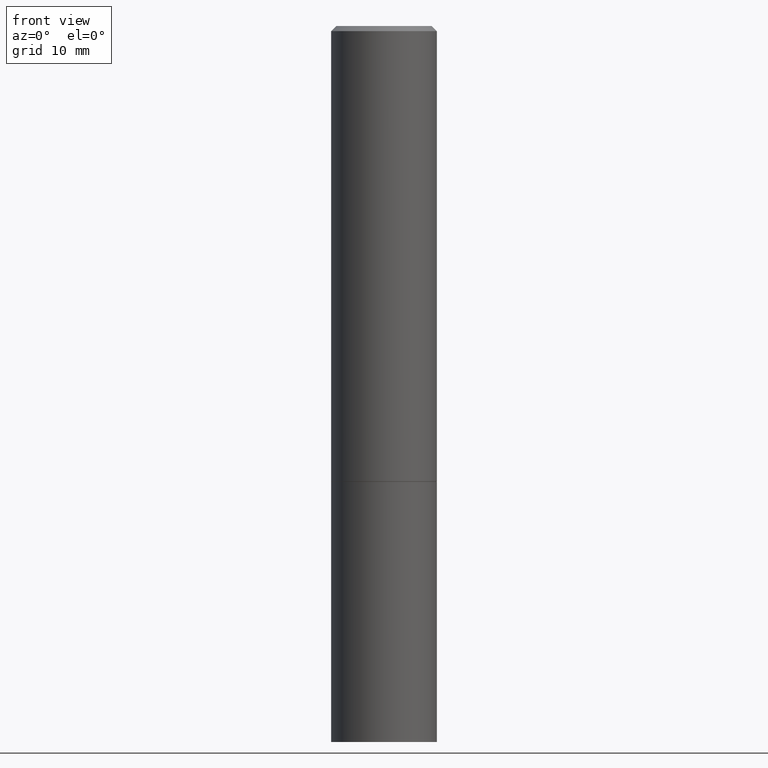
[diagram: clean part render]
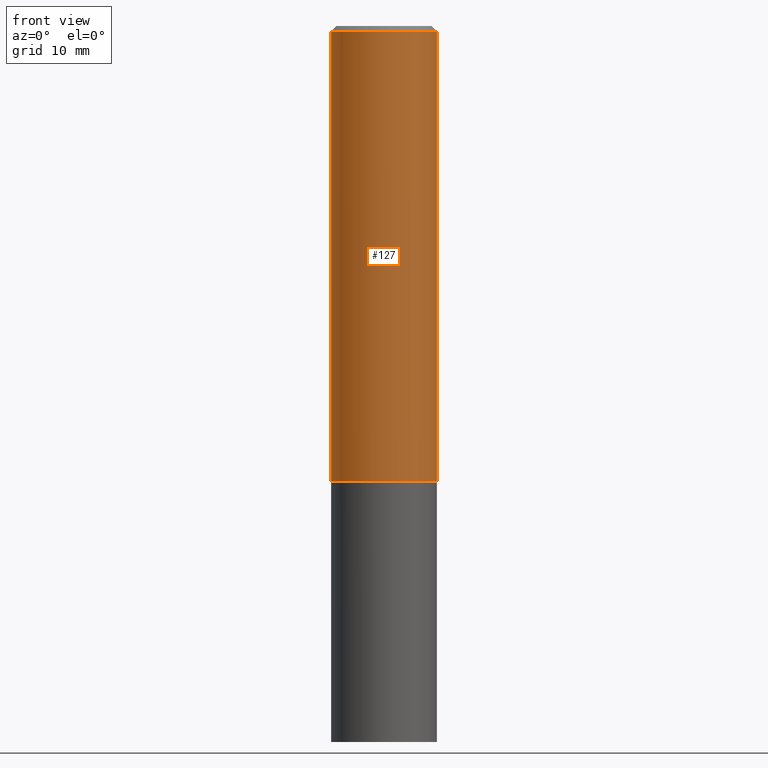
[diagram: same view with one face highlighted and labeled with its STEP entity id]
A machine part, front view. The second image highlights one B-rep face of the part: STEP entity #127.
In plain terms, the highlighted cylindrical surface (partial cylindrical patch) has radius 5.1587 mm, axis along (-0, 0, 1).
Its self-contained STEP definition (entity closure, byte-faithful):
#13 = CARTESIAN_POINT ( 'NONE',  ( 0.000000000000000000, 0.000000000000000000, 0.000000000000000000 ) ) ;
#15 = EDGE_CURVE ( 'NONE', #319, #146, #314, .T. ) ;
#38 = AXIS2_PLACEMENT_3D ( 'NONE', #157, #124, #246 ) ;
#45 = EDGE_CURVE ( 'NONE', #319, #360, #185, .T. ) ;
#57 = CARTESIAN_POINT ( 'NONE',  ( -0.2031000000000000583, -1.645102947877997012E-15, -1.748999999999999888 ) ) ;
#82 = ORIENTED_EDGE ( 'NONE', *, *, #174, .T. ) ;
#101 = DIRECTION ( 'NONE',  ( 1.000000000000000000, -6.982962677686266711E-15, 4.876176775795935793E-29 ) ) ;
#107 = LINE ( 'NONE', #191, #281 ) ;
#124 = DIRECTION ( 'NONE',  ( -2.445468806185136597E-29, 3.491481338843145583E-15, 1.000000000000000000 ) ) ;
#127 = ADVANCED_FACE ( 'NONE', ( #226 ), #316, .T. ) ;
#132 = AXIS2_PLACEMENT_3D ( 'NONE', #13, #231, #101 ) ;
#146 = VERTEX_POINT ( 'NONE', #340 ) ;
#157 = CARTESIAN_POINT ( 'NONE',  ( 4.277124942017804002E-29, -6.106600861636660875E-15, -1.748999999999999888 ) ) ;
#159 = VERTEX_POINT ( 'NONE', #251 ) ;
#161 = EDGE_CURVE ( 'NONE', #360, #159, #296, .T. ) ;
#166 = CARTESIAN_POINT ( 'NONE',  ( 4.890937612370284544E-31, -6.982962677686307633E-17, -0.02000000000000004552 ) ) ;
#174 = EDGE_CURVE ( 'NONE', #146, #159, #107, .T. ) ;
#185 = LINE ( 'NONE', #216, #214 ) ;
#191 = CARTESIAN_POINT ( 'NONE',  ( 0.2030999999999999472, -1.418239719838080381E-15, 9.903515031641543342E-30 ) ) ;
#202 = EDGE_LOOP ( 'NONE', ( #268, #230, #82, #249 ) ) ;
#214 = VECTOR ( 'NONE', #303, 39.37007874015748143 ) ;
#216 = CARTESIAN_POINT ( 'NONE',  ( -0.2030999999999999472, 1.443112296328763103E-15, -9.990357168307711400E-30 ) ) ;
#223 = DIRECTION ( 'NONE',  ( -2.445468806185136877E-29, 3.491481338843145188E-15, 1.000000000000000000 ) ) ;
#226 = FACE_OUTER_BOUND ( 'NONE', #202, .T. ) ;
#230 = ORIENTED_EDGE ( 'NONE', *, *, #15, .T. ) ;
#231 = DIRECTION ( 'NONE',  ( -2.445468806185136597E-29, 3.491481338843145583E-15, 1.000000000000000000 ) ) ;
#235 = AXIS2_PLACEMENT_3D ( 'NONE', #166, #375, #280 ) ;
#246 = DIRECTION ( 'NONE',  ( 1.000000000000000000, -6.982962677686264344E-15, 0.000000000000000000 ) ) ;
#249 = ORIENTED_EDGE ( 'NONE', *, *, #161, .F. ) ;
#251 = CARTESIAN_POINT ( 'NONE',  ( 0.2030999999999998362, -1.463196770124260168E-15, -0.02000000000000004552 ) ) ;
#268 = ORIENTED_EDGE ( 'NONE', *, *, #45, .F. ) ;
#280 = DIRECTION ( 'NONE',  ( 1.000000000000000000, -6.982962677686266711E-15, 0.000000000000000000 ) ) ;
#281 = VECTOR ( 'NONE', #223, 39.37007874015748143 ) ;
#296 = CIRCLE ( 'NONE', #235, 0.2030999999999998362 ) ;
#303 = DIRECTION ( 'NONE',  ( -2.445468806185136877E-29, 3.491481338843145188E-15, 1.000000000000000000 ) ) ;
#314 = CIRCLE ( 'NONE', #38, 0.2031000000000000028 ) ;
#316 = CYLINDRICAL_SURFACE ( 'NONE', #132, 0.2030999999999999472 ) ;
#319 = VERTEX_POINT ( 'NONE', #57 ) ;
#340 = CARTESIAN_POINT ( 'NONE',  ( 0.2031000000000000028, -7.524840581474740861E-15, -1.748999999999999888 ) ) ;
#360 = VERTEX_POINT ( 'NONE', #383 ) ;
#375 = DIRECTION ( 'NONE',  ( -2.445468806185136597E-29, 3.491481338843145583E-15, 1.000000000000000000 ) ) ;
#383 = CARTESIAN_POINT ( 'NONE',  ( -0.2030999999999998362, 1.348410093061216491E-15, -0.02000000000000004552 ) ) ;